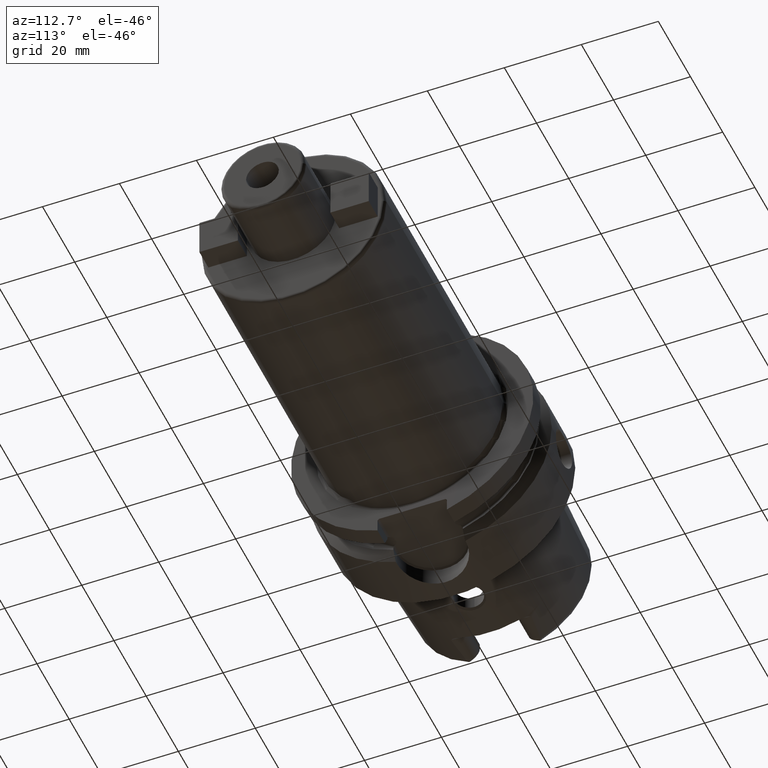
[diagram: clean part render]
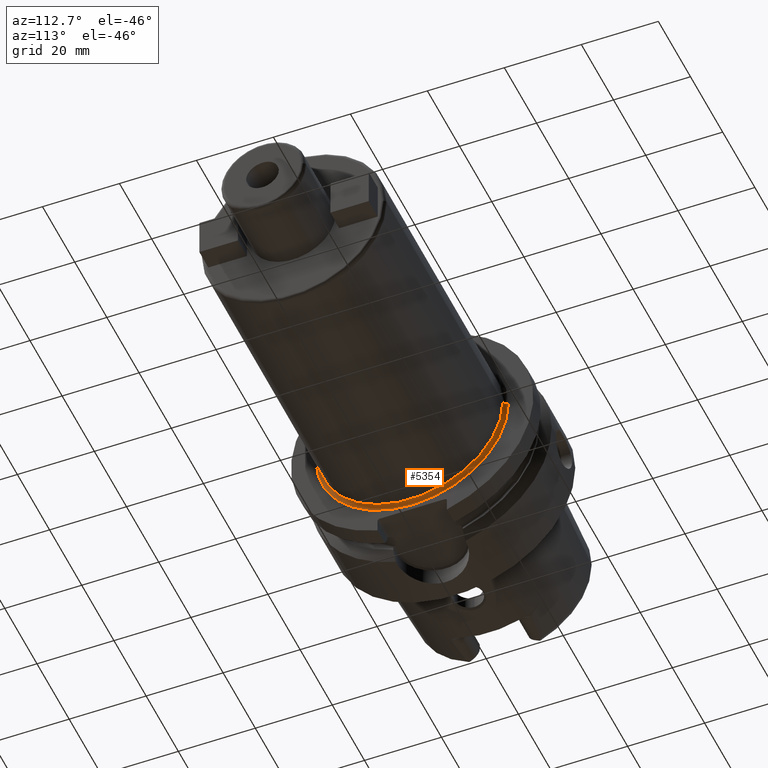
[diagram: same view with one face highlighted and labeled with its STEP entity id]
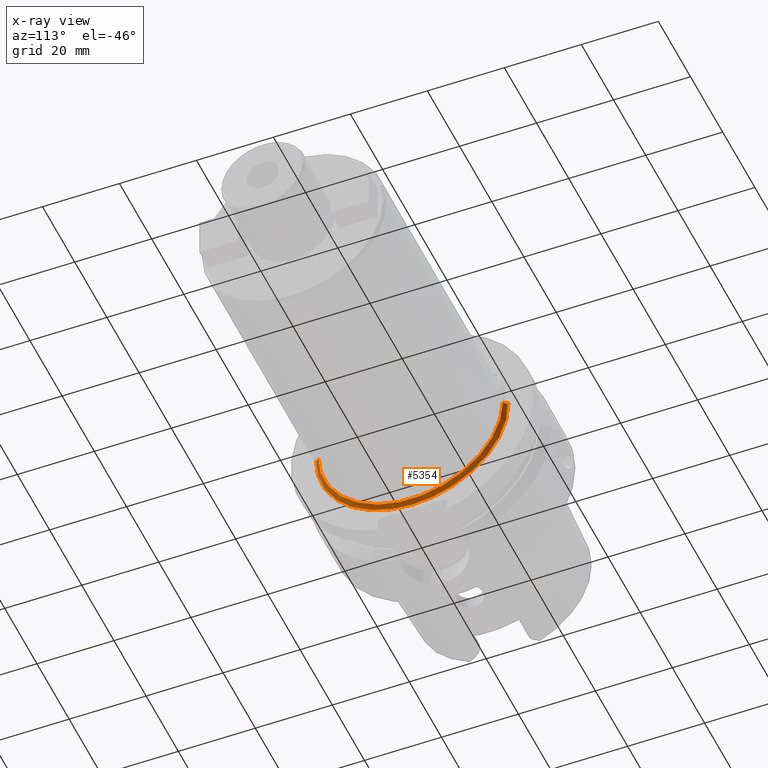
[diagram: x-ray of the same camera — body ghosted, the highlighted face saturated]
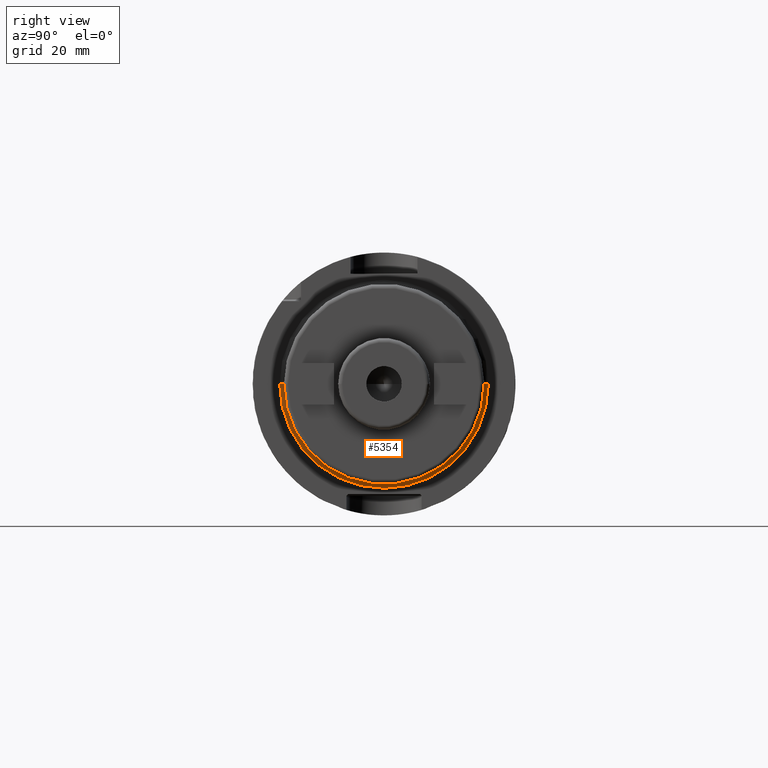
[diagram: same view with one face highlighted and labeled with its STEP entity id]
A machine part, auxiliary view. The second image highlights one B-rep face of the part: STEP entity #5354.
The next image is the same camera in x-ray: the body ghosted, the highlighted face saturated — about 0% of this face is hidden behind the body in this view.
A second angle (right view) of the same face is appended — the face is thin or edge-on in the first view.
In plain terms, the highlighted toroidal blend (fillet) surface has major radius 25 mm and minor (blend) radius 1 mm.
Its self-contained STEP definition (entity closure, byte-faithful):
#1708=CARTESIAN_POINT('',(2.6E1,0.E0,0.E0));
#1709=DIRECTION('',(1.E0,0.E0,0.E0));
#1710=DIRECTION('',(0.E0,-1.E0,0.E0));
#1711=AXIS2_PLACEMENT_3D('',#1708,#1709,#1710);
#1956=CARTESIAN_POINT('',(2.7E1,-2.5E1,0.E0));
#1957=DIRECTION('',(0.E0,0.E0,-1.E0));
#1958=DIRECTION('',(-1.E0,1.421085471520E-14,0.E0));
#1959=AXIS2_PLACEMENT_3D('',#1956,#1957,#1958);
#1961=CARTESIAN_POINT('',(2.7E1,2.5E1,0.E0));
#1962=DIRECTION('',(0.E0,0.E0,1.E0));
#1963=DIRECTION('',(-1.E0,0.E0,0.E0));
#1964=AXIS2_PLACEMENT_3D('',#1961,#1962,#1963);
#1980=CARTESIAN_POINT('',(2.7E1,0.E0,0.E0));
#1981=DIRECTION('',(1.E0,0.E0,0.E0));
#1982=DIRECTION('',(0.E0,-1.E0,0.E0));
#1983=AXIS2_PLACEMENT_3D('',#1980,#1981,#1982);
#3190=CARTESIAN_POINT('',(2.6E1,-2.5E1,0.E0));
#3191=CARTESIAN_POINT('',(2.6E1,2.5E1,0.E0));
#3192=VERTEX_POINT('',#3190);
#3193=VERTEX_POINT('',#3191);
#3194=CARTESIAN_POINT('',(2.7E1,-2.4E1,0.E0));
#3195=CARTESIAN_POINT('',(2.7E1,2.4E1,0.E0));
#3196=VERTEX_POINT('',#3194);
#3197=VERTEX_POINT('',#3195);
#5340=CARTESIAN_POINT('',(2.7E1,0.E0,0.E0));
#5341=DIRECTION('',(1.E0,0.E0,0.E0));
#5342=DIRECTION('',(0.E0,-9.999948687983E-1,3.203494520728E-3));
#5343=AXIS2_PLACEMENT_3D('',#5340,#5341,#5342);
#5344=TOROIDAL_SURFACE('',#5343,2.5E1,1.E0);
#5345=ORIENTED_EDGE('',*,*,#5047,.F.);
#5347=ORIENTED_EDGE('',*,*,#5346,.T.);
#5349=ORIENTED_EDGE('',*,*,#5348,.T.);
#5351=ORIENTED_EDGE('',*,*,#5350,.F.);
#5352=EDGE_LOOP('',(#5345,#5347,#5349,#5351));
#5353=FACE_OUTER_BOUND('',#5352,.F.);
#5354=ADVANCED_FACE('',(#5353),#5344,.F.);
#1712=CIRCLE('',#1711,2.5E1);
#1960=CIRCLE('',#1959,1.E0);
#1965=CIRCLE('',#1964,1.E0);
#1984=CIRCLE('',#1983,2.4E1);
#5047=EDGE_CURVE('',#3192,#3193,#1712,.T.);
#5346=EDGE_CURVE('',#3192,#3196,#1960,.T.);
#5348=EDGE_CURVE('',#3196,#3197,#1984,.T.);
#5350=EDGE_CURVE('',#3193,#3197,#1965,.T.);